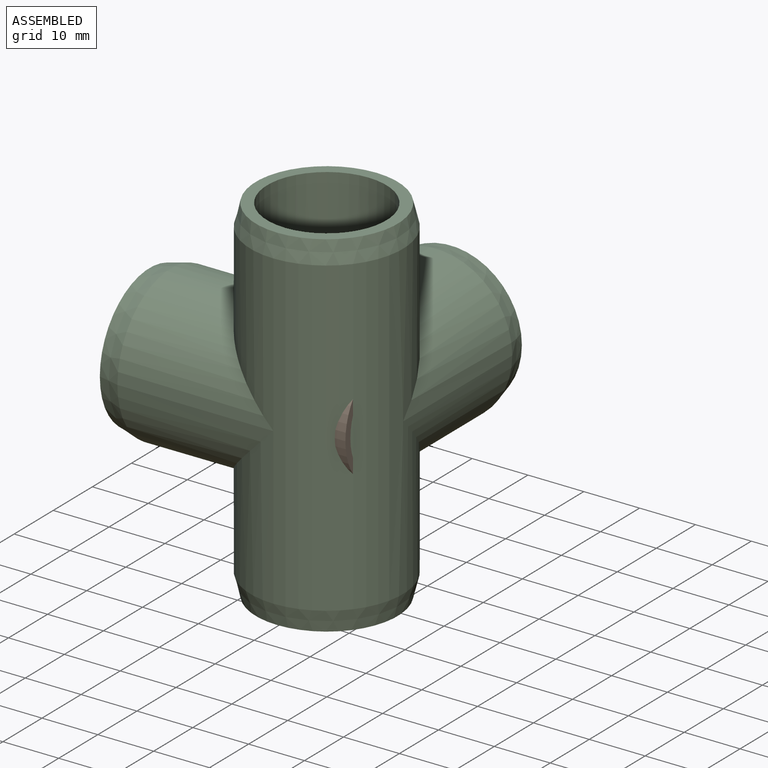
[diagram: assembled view]
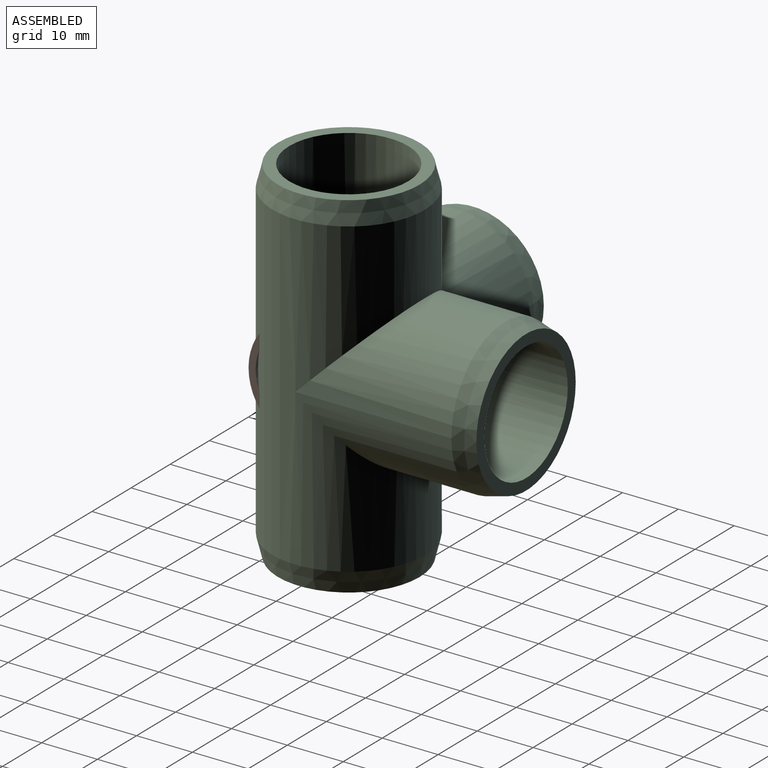
[diagram: assembled view, second angle]
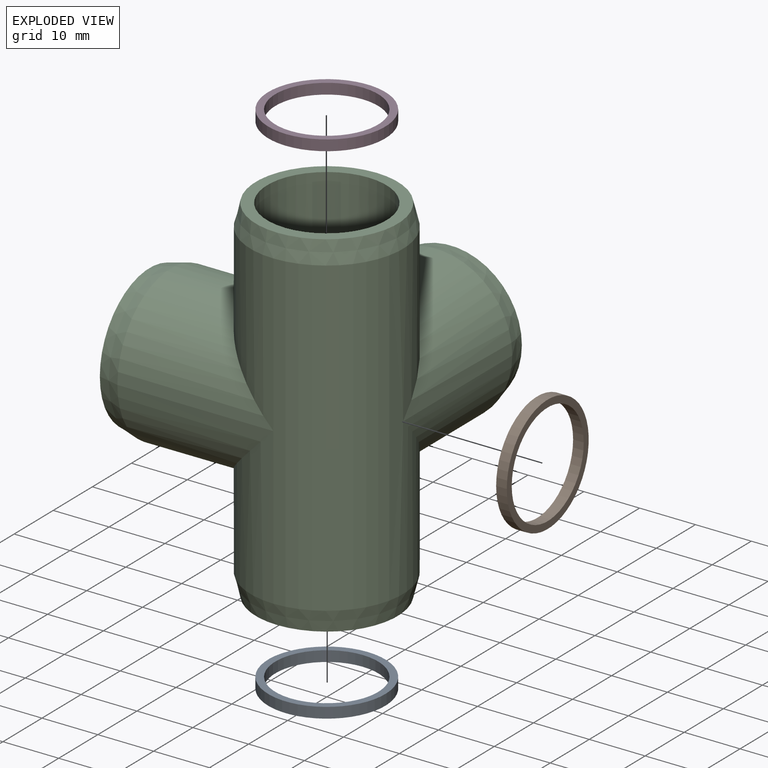
[diagram: exploded view]
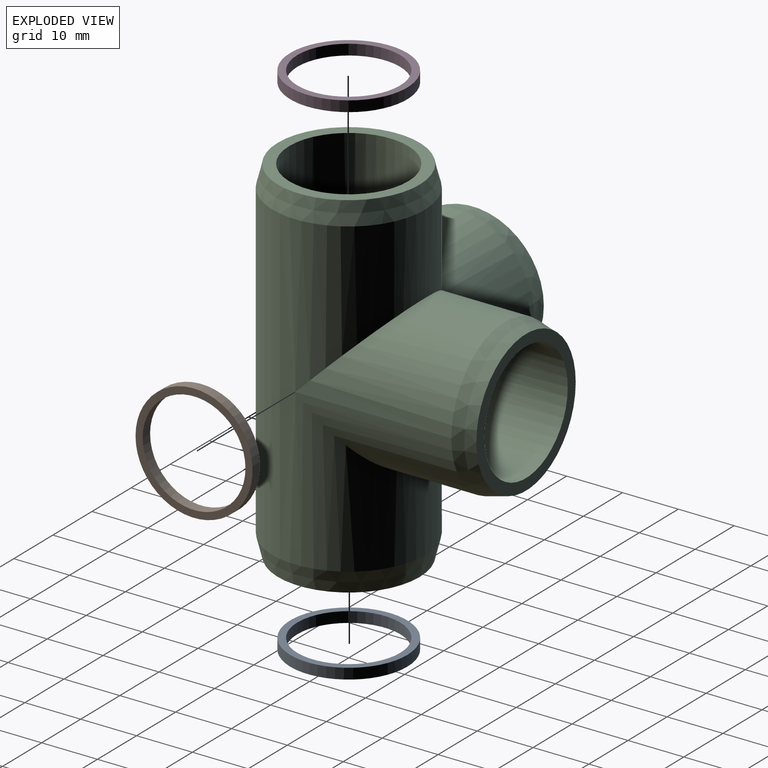
[diagram: exploded view, second angle]
ASSEMBLY  parts=4 mates=3
PART A: 4 faces, bbox 21x21x1.9 mm
  f0: cylinder r=10.48mm len=20.96mm, axis (0,0,-1), area 125.4mm2, adj f1,f3
  f1: plane 20.96x20.96mm, normal (0,0,-1), area 78.5mm2, adj f0,f2
  f2: cylinder r=9.21mm len=18.42mm, axis (0,0,-1), area 110.2mm2, adj f1,f3
  f3: plane 20.96x20.96mm, normal (0,0,1), area 78.5mm2, adj f0,f2
PART B: 4 faces, bbox 1.9x21x21 mm
  f0: cylinder r=10.48mm len=20.96mm, axis (-1,0,0), area 125.4mm2, adj f1,f3
  f1: plane 20.96x20.96mm, normal (1,0,0), area 78.5mm2, adj f0,f2
  f2: cylinder r=9.21mm len=18.42mm, axis (-1,0,0), area 110.2mm2, adj f1,f3
  f3: plane 20.96x20.96mm, normal (-1,0,0), area 78.5mm2, adj f0,f2
PART C: 18 faces, bbox 45.4x45.4x63.5 mm
  f0: cylinder r=13.65mm len=55.88mm, axis (0,0,-1), area 3520.7mm2, adj f4,f10,f14,f15
  f1: plane 25.4x25.4mm, normal (0,0,1), area 149.2mm2, adj f5,f15
  f2: plane 25.4x25.4mm, normal (0,0,-1), area 149.2mm2, adj f5,f14
  f3: cylinder r=10.67mm len=21.34mm, axis (0,-1,0), area 1276.9mm2, adj f7,f11
  f4: cylinder r=13.65mm len=27.94mm, axis (0,1,0), area 1496.8mm2, adj f0,f10,f16
  f5: cylinder r=10.67mm len=63.5mm, axis (0,0,-1), area 3479.2mm2, adj f1,f2,f6,f8
  f6: cylinder r=10.67mm len=21.34mm, axis (0,-1,0), area 174.1mm2, adj f5,f8,f13
  f7: plane 25.4x25.4mm, normal (0,1,0), area 149.2mm2, adj f3,f16
  f8: cylinder r=10.67mm len=31.75mm, axis (1,0,0), area 1578.7mm2, adj f5,f6,f9
  f9: plane 25.4x25.4mm, normal (-1,0,0), area 149.2mm2, adj f8,f17
  f10: cylinder r=13.65mm len=27.94mm, axis (-1,0,0), area 1496.8mm2, adj f0,f4,f17
  f11: plane 21.34x21.34mm, normal (0,1,0), area 80.1mm2, adj f3,f12
  f12: cylinder r=9.4mm len=18.8mm, axis (0,1,0), area 112.5mm2, adj f11,f13
  f13: plane 21.34x21.34mm, normal (0,-1,0), area 80.1mm2, adj f6,f12
  f14: cone r=12.7mm half-angle=14deg, axis (0,0,1), area 325.1mm2, adj f0,f2
  f15: cone r=12.7mm half-angle=14deg, axis (0,0,-1), area 325.1mm2, adj f0,f1
  f16: cone r=13.65mm half-angle=14deg, axis (0,-1,0), area 325.1mm2, adj f4,f7
  f17: cone r=13.65mm half-angle=14deg, axis (1,0,0), area 325.1mm2, adj f9,f10
PART D: 4 faces, bbox 21x21x1.9 mm
  f0: cylinder r=10.48mm len=20.96mm, axis (0,0,1), area 125.4mm2, adj f1,f3
  f1: plane 20.96x20.96mm, normal (0,0,1), area 78.5mm2, adj f0,f2
  f2: cylinder r=9.21mm len=18.42mm, axis (0,0,1), area 110.2mm2, adj f1,f3
  f3: plane 20.96x20.96mm, normal (0,0,-1), area 78.5mm2, adj f0,f2
PLACE A t=(0,0,0.13)mm
PLACE B rot(axis=(0.05,-0.73,-0.68),0deg) t=(21.46,0,0)mm
PLACE C at identity fixed
PLACE D t=(0,0,-0.13)mm
MATE slider A.f0 <-> C.f0  axis (0,0,-1) through (0,0,21.08)mm
MATE slider B.f0 <-> C.f8  axis (1,0,0) through (10.67,0,31.75)mm
MATE slider D.f0 <-> C.f0  axis (0,0,1) through (0,0,43.37)mm
